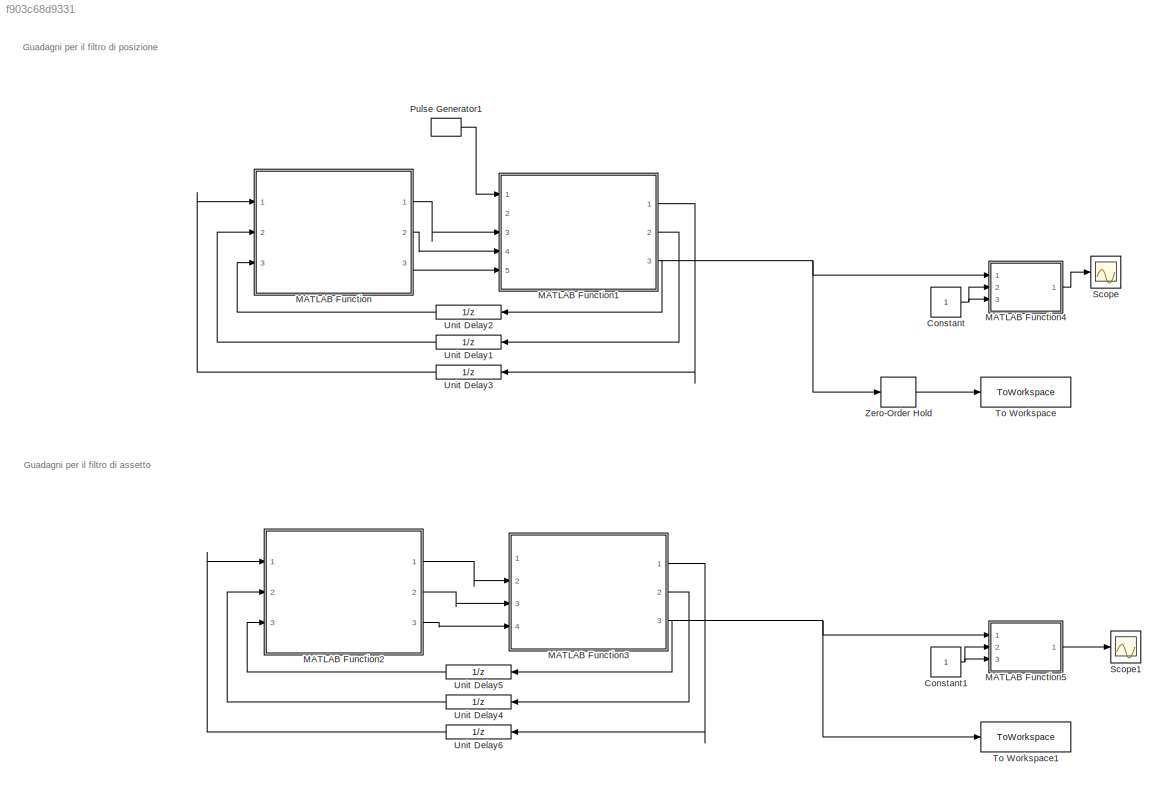
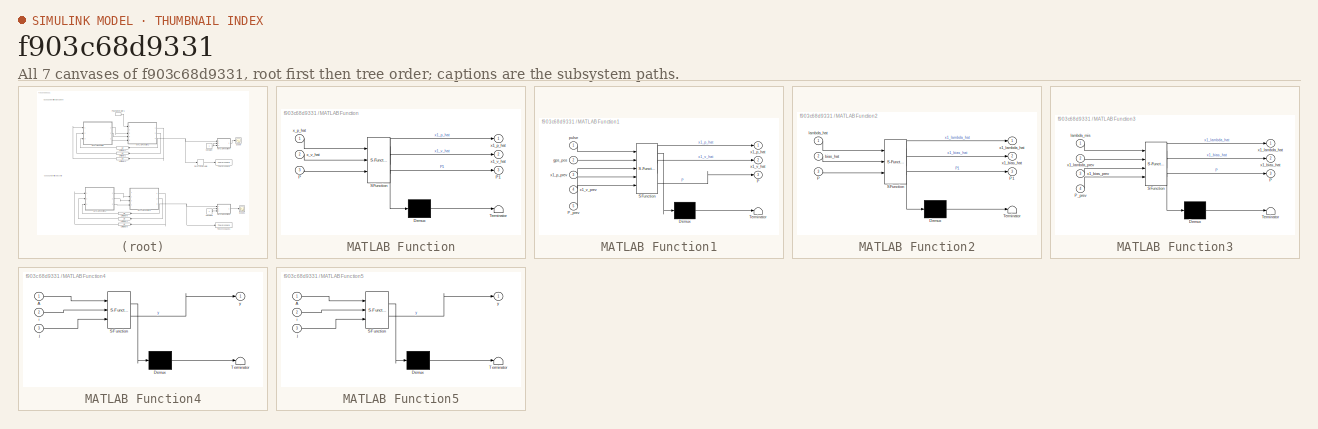
[diagram: thumbnail index - all 7 canvases of the model, root first then tree order]
MODEL slx_f903c68d9331
KIND model
CONFIG AbsTol = auto
CONFIG EnableMultiTasking = off
CONFIG FixedStep = auto
CONFIG MaxStep = auto
CONFIG MinStep = auto
CONFIG RelTol = 1e-3
CONFIG SampleTimeConstraint = Unconstrained
CONFIG SolverName = VariableStepAuto
CONFIG StartTime = 0.0
CONFIG StopTime = 10
BLOCK [Constant] Constant
BLOCK [Constant] Constant1
BLOCK [SubSystem] MATLAB Function
  ErrorFcn = Stateflow.Translate.translate
  PermitHierarchicalResolution = ExplicitOnly
  Ports = [3, 3]
  RequestExecContextInheritance = off
  SFBlockType = MATLAB Function
  TreatAsAtomicUnit = on
BLOCK [Demux] MATLAB Function/ Demux 
  Outputs = 1
  Ports = [1, 1]
BLOCK [S-Function] MATLAB Function/ SFunction 
  EnableBusSupport = on
  FunctionName = sf_sfun
  Parameters = T
  PortCounts = [3 4]
  Ports = [3, 4]
  SFcnIsStateOwnerBlock = off
  SFunctionDeploymentMode = off
  Tag = Stateflow S-Function 2
BLOCK [Terminator] MATLAB Function/ Terminator 
BLOCK [Inport] MATLAB Function/P
  Port = 3
BLOCK [Outport] MATLAB Function/P1
  Port = 3
BLOCK [Outport] MATLAB Function/x1_p_hat
BLOCK [Outport] MATLAB Function/x1_v_hat
  Port = 2
BLOCK [Inport] MATLAB Function/x_p_hat
BLOCK [Inport] MATLAB Function/x_v_hat
  Port = 2
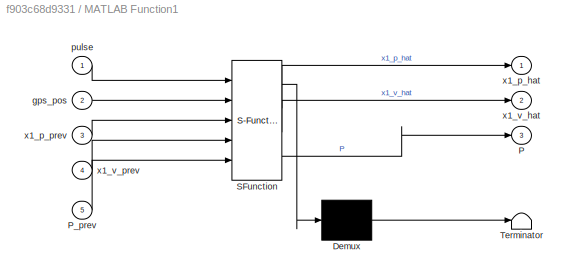
BLOCK [SubSystem] MATLAB Function1
  ErrorFcn = Stateflow.Translate.translate
  PermitHierarchicalResolution = ExplicitOnly
  Ports = [5, 3]
  RequestExecContextInheritance = off
  SFBlockType = MATLAB Function
  TreatAsAtomicUnit = on
BLOCK [Demux] MATLAB Function1/ Demux 
  Outputs = 1
  Ports = [1, 1]
BLOCK [S-Function] MATLAB Function1/ SFunction 
  EnableBusSupport = on
  FunctionName = sf_sfun
  PortCounts = [5 4]
  Ports = [5, 4]
  SFcnIsStateOwnerBlock = off
  SFunctionDeploymentMode = off
  Tag = Stateflow S-Function 1
BLOCK [Terminator] MATLAB Function1/ Terminator 
BLOCK [Outport] MATLAB Function1/P
  Port = 3
BLOCK [Inport] MATLAB Function1/P_prev
  Port = 5
BLOCK [Inport] MATLAB Function1/gps_pos
  Port = 2
BLOCK [Inport] MATLAB Function1/pulse
BLOCK [Outport] MATLAB Function1/x1_p_hat
BLOCK [Inport] MATLAB Function1/x1_p_prev
  Port = 3
BLOCK [Outport] MATLAB Function1/x1_v_hat
  Port = 2
BLOCK [Inport] MATLAB Function1/x1_v_prev
  Port = 4
BLOCK [SubSystem] MATLAB Function2
  ErrorFcn = Stateflow.Translate.translate
  PermitHierarchicalResolution = ExplicitOnly
  Ports = [3, 3]
  RequestExecContextInheritance = off
  SFBlockType = MATLAB Function
  TreatAsAtomicUnit = on
BLOCK [Demux] MATLAB Function2/ Demux 
  Outputs = 1
  Ports = [1, 1]
BLOCK [S-Function] MATLAB Function2/ SFunction 
  EnableBusSupport = on
  FunctionName = sf_sfun
  Parameters = T
  PortCounts = [3 4]
  Ports = [3, 4]
  SFcnIsStateOwnerBlock = off
  SFunctionDeploymentMode = off
  Tag = Stateflow S-Function 3
BLOCK [Terminator] MATLAB Function2/ Terminator 
BLOCK [Inport] MATLAB Function2/P
  Port = 3
BLOCK [Outport] MATLAB Function2/P1
  Port = 3
BLOCK [Inport] MATLAB Function2/bias_hat
  Port = 2
BLOCK [Inport] MATLAB Function2/lambda_hat
BLOCK [Outport] MATLAB Function2/x1_bias_hat
  Port = 2
BLOCK [Outport] MATLAB Function2/x1_lambda_hat
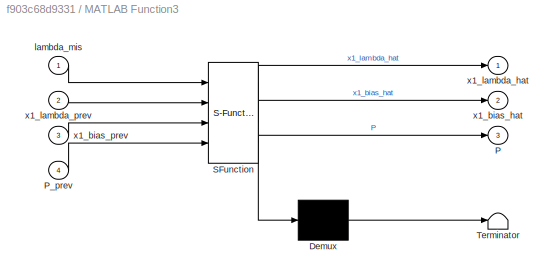
BLOCK [SubSystem] MATLAB Function3
  ErrorFcn = Stateflow.Translate.translate
  PermitHierarchicalResolution = ExplicitOnly
  Ports = [4, 3]
  RequestExecContextInheritance = off
  SFBlockType = MATLAB Function
  TreatAsAtomicUnit = on
BLOCK [Demux] MATLAB Function3/ Demux 
  Outputs = 1
  Ports = [1, 1]
BLOCK [S-Function] MATLAB Function3/ SFunction 
  EnableBusSupport = on
  FunctionName = sf_sfun
  PortCounts = [4 4]
  Ports = [4, 4]
  SFcnIsStateOwnerBlock = off
  SFunctionDeploymentMode = off
  Tag = Stateflow S-Function 4
BLOCK [Terminator] MATLAB Function3/ Terminator 
BLOCK [Outport] MATLAB Function3/P
  Port = 3
BLOCK [Inport] MATLAB Function3/P_prev
  Port = 4
BLOCK [Inport] MATLAB Function3/lambda_mis
BLOCK [Outport] MATLAB Function3/x1_bias_hat
  Port = 2
BLOCK [Inport] MATLAB Function3/x1_bias_prev
  Port = 3
BLOCK [Outport] MATLAB Function3/x1_lambda_hat
BLOCK [Inport] MATLAB Function3/x1_lambda_prev
  Port = 2
BLOCK [SubSystem] MATLAB Function4
  ErrorFcn = Stateflow.Translate.translate
  PermitHierarchicalResolution = ExplicitOnly
  Ports = [3, 1]
  RequestExecContextInheritance = off
  SFBlockType = MATLAB Function
  TreatAsAtomicUnit = on
BLOCK [Demux] MATLAB Function4/ Demux 
  Outputs = 1
  Ports = [1, 1]
BLOCK [S-Function] MATLAB Function4/ SFunction 
  EnableBusSupport = on
  FunctionName = sf_sfun
  PortCounts = [3 2]
  Ports = [3, 2]
  SFcnIsStateOwnerBlock = off
  SFunctionDeploymentMode = off
  Tag = Stateflow S-Function 5
BLOCK [Terminator] MATLAB Function4/ Terminator 
BLOCK [Inport] MATLAB Function4/A
BLOCK [Inport] MATLAB Function4/i
  Port = 2
BLOCK [Inport] MATLAB Function4/j
  Port = 3
BLOCK [Outport] MATLAB Function4/y
BLOCK [SubSystem] MATLAB Function5
  ErrorFcn = Stateflow.Translate.translate
  PermitHierarchicalResolution = ExplicitOnly
  Ports = [3, 1]
  RequestExecContextInheritance = off
  SFBlockType = MATLAB Function
  TreatAsAtomicUnit = on
BLOCK [Demux] MATLAB Function5/ Demux 
  Outputs = 1
  Ports = [1, 1]
BLOCK [S-Function] MATLAB Function5/ SFunction 
  EnableBusSupport = on
  FunctionName = sf_sfun
  PortCounts = [3 2]
  Ports = [3, 2]
  SFcnIsStateOwnerBlock = off
  SFunctionDeploymentMode = off
  Tag = Stateflow S-Function 6
BLOCK [Terminator] MATLAB Function5/ Terminator 
BLOCK [Inport] MATLAB Function5/A
BLOCK [Inport] MATLAB Function5/i
  Port = 2
BLOCK [Inport] MATLAB Function5/j
  Port = 3
BLOCK [Outport] MATLAB Function5/y
BLOCK [DiscretePulseGenerator] Pulse Generator1
  Period = 1/4
  Ports = [0, 1]
  PulseType = Time based
  PulseWidth = 10
BLOCK [Scope] Scope
  Floating = off
  NumInputPorts = 1
  Ports = [1]
  ScopeSpecificationString = Simulink.scopes.TimeScopeBlockCfg('CurrentConfiguration', extmgr.ConfigurationSet(extmgr.Configuration('Core','General UI',true),extmgr.Configuration('Core','Source UI',true),extmgr.Configuration('Sources','WiredSimulink',true),extmgr.Configuration('Visuals','Time Domain',true,'SerializedDisplays',{struct('MinYLimReal','0.21111','MaxYLimReal','1.76362','YLabelReal','','MinYLimMag','0.21111','MaxYL...<+2276ch>
BLOCK [Scope] Scope1
  Floating = off
  NumInputPorts = 1
  Ports = [1]
  ScopeSpecificationString = Simulink.scopes.TimeScopeBlockCfg('CurrentConfiguration', extmgr.ConfigurationSet(extmgr.Configuration('Core','General UI',true),extmgr.Configuration('Core','Source UI',true),extmgr.Configuration('Sources','WiredSimulink',true,'DataLoggingVariableName','ScopeData1'),extmgr.Configuration('Visuals','Time Domain',true,'SerializedDisplays',{struct('MinYLimReal','0.00196','MaxYLimReal','0.00589','YLabe...<+2313ch>
BLOCK [ToWorkspace] To Workspace
  FixptAsFi = on
  MaxDataPoints = inf
  Ports = [1]
  SampleTime = -1
  VariableName = P_p_inf
BLOCK [ToWorkspace] To Workspace1
  FixptAsFi = on
  MaxDataPoints = inf
  Ports = [1]
  SampleTime = -1
  VariableName = P_lambda_inf
BLOCK [UnitDelay] Unit Delay1
  HasFrameUpgradeWarning = on
  InitialCondition = zeros(3,1)
  SampleTime = -1
BLOCK [UnitDelay] Unit Delay2
  HasFrameUpgradeWarning = on
  InitialCondition = 10*eye(6)
  SampleTime = -1
BLOCK [UnitDelay] Unit Delay3
  HasFrameUpgradeWarning = on
  InitialCondition = zeros(3,1)
  SampleTime = -1
BLOCK [UnitDelay] Unit Delay4
  HasFrameUpgradeWarning = on
  InitialCondition = zeros(3,1)
  SampleTime = -1
BLOCK [UnitDelay] Unit Delay5
  HasFrameUpgradeWarning = on
  InitialCondition = 0.02*eye(6)
  SampleTime = -1
BLOCK [UnitDelay] Unit Delay6
  HasFrameUpgradeWarning = on
  InitialCondition = zeros(3,1)
  SampleTime = -1
BLOCK [ZeroOrderHold] Zero-Order Hold
  SampleTime = T_gps
ANNOTATION (root): Guadagni per il filtro di assetto
ANNOTATION (root): Guadagni per il filtro di posizione
NET Constant1:1 -> MATLAB Function5:2, MATLAB Function5:3
NET Constant:1 -> MATLAB Function4:2, MATLAB Function4:3
LINE MATLAB Function1:1 -> Unit Delay3:1
LINE MATLAB Function1:2 -> Unit Delay1:1
NET MATLAB Function1:3 -> MATLAB Function4:1, Unit Delay2:1, Zero-Order Hold:1
LINE MATLAB Function2:1 -> MATLAB Function3:2
LINE MATLAB Function2:2 -> MATLAB Function3:3
LINE MATLAB Function2:3 -> MATLAB Function3:4
LINE MATLAB Function3:1 -> Unit Delay6:1
LINE MATLAB Function3:2 -> Unit Delay4:1
NET MATLAB Function3:3 -> MATLAB Function5:1, To Workspace1:1, Unit Delay5:1
LINE MATLAB Function4:1 -> Scope:1
LINE MATLAB Function5:1 -> Scope1:1
LINE MATLAB Function:1 -> MATLAB Function1:3
LINE MATLAB Function:2 -> MATLAB Function1:4
LINE MATLAB Function:3 -> MATLAB Function1:5
LINE Pulse Generator1:1 -> MATLAB Function1:1
LINE Unit Delay1:1 -> MATLAB Function:2
LINE Unit Delay2:1 -> MATLAB Function:3
LINE Unit Delay3:1 -> MATLAB Function:1
LINE Unit Delay4:1 -> MATLAB Function2:2
LINE Unit Delay5:1 -> MATLAB Function2:3
LINE Unit Delay6:1 -> MATLAB Function2:1
LINE Zero-Order Hold:1 -> To Workspace:1
note: NET lines group one-source signal fan-out (src -> all destinations, sorted); 1:1 wires keep LINE
CHART MATLAB Function1 states=1 transitions=1
  STATE_LABEL 'eML_blk_kernel()'
  STATE_LABEL "SCRIPT:\nfunction [x1_p_hat, x1_v_hat,P] = fcn(pulse,gps_pos,x1_p_prev, x1_v_prev,P_prev)\n\n%% Gestione delle misure dei sensori e inizializzazione\n    % pulse = 1 -> arriva una nuova misura del sensore\n    % pulse = 0 -> non c'è nessuna nuova misura\n  \n    % Stato predetto in ingresso\n    xi_prev = [x1_p_prev ; x1_v_prev];\n\n    if pulse == 1  \n        % Jacobiani del modello di misura rispetto allo...<+927ch>"
CHART MATLAB Function states=1 transitions=1
  STATE_LABEL 'eML_blk_kernel()'
  STATE_LABEL 'SCRIPT:\nfunction [x1_p_hat, x1_v_hat,P1] = predizione(x_p_hat,x_v_hat,P,T)\n\nF = [   eye(3),     T*eye(3);\n      zeros(3,3),    eye(3)  ];\n\nG = [   eye(3),   -T^2/2*eye(3);\n      zeros(3,3),    T*eye(3)  ];\n\n% Disturbi posizione \nsigma_p = 5*10^-2*eye(3);\nsigma_a = 10 *eye(3);\n\nsigma = [sigma_p zeros(3,3); zeros(3,3) sigma_a];\n\nwpk = zeros(3,1);\nwvk = zeros(3,1);\n\n\nx1 = F*[x_p_hat ; x_v_hat] + G *[...<+87ch>'
CHART MATLAB Function2 states=1 transitions=1
  STATE_LABEL 'eML_blk_kernel()'
  STATE_LABEL 'SCRIPT:\nfunction [x1_lambda_hat, x1_bias_hat,P1] = predizione(lambda_hat,bias_hat,P,T)\n\nF = [   eye(3),     -T*eye(3);\n      zeros(3,3),    eye(3)  ];\n\nG = [ -T*eye(3),   zeros(3,3);\n      zeros(3,3),    T*eye(3)  ];\n\n% Rumore\n    \n% Disturbi posizione \nsigma_w = 3*eye(3);\nsigma_b = 1e-10 *eye(3);\n\nsigma = [sigma_w zeros(3,3); zeros(3,3) sigma_b];\n\nwpk = zeros(3,1);\nwvk = zeros(3,1);\n\n\nx1 = F*[lam...<+121ch>'
CHART MATLAB Function3 states=1 transitions=1
  STATE_LABEL 'eML_blk_kernel()'
  STATE_LABEL "SCRIPT:\nfunction [x1_lambda_hat, x1_bias_hat,P] = fcn(lambda_mis,x1_lambda_prev, x1_bias_prev,P_prev)\n\n%% Gestione delle misure dei sensori e inizializzazione\n    % pulse = 1 -> arriva una nuova misura del sensore\n    % pulse = 0 -> non c'è nessuna nuova misura\n  \n    % Stato predetto in ingresso\n    xi_prev = [x1_lambda_prev ; x1_bias_prev];\n\n        % Jacobiani del modello di misura rispetto all...<+748ch>"
CHART MATLAB Function4 states=1 transitions=1
  STATE_LABEL 'eML_blk_kernel()'
  STATE_LABEL 'SCRIPT:\nfunction y = get(A,i,j)\ny = A(i,j);\n'
CHART MATLAB Function5 states=1 transitions=1
  STATE_LABEL 'eML_blk_kernel()'
  STATE_LABEL 'SCRIPT:\nfunction y = get(A,i,j)\ny = A(i,j);\n'
CHART  states=0 transitions=0
CHART  states=0 transitions=0
CHART  states=0 transitions=0
CHART  states=0 transitions=0
CHART  states=0 transitions=0
CHART  states=0 transitions=0
